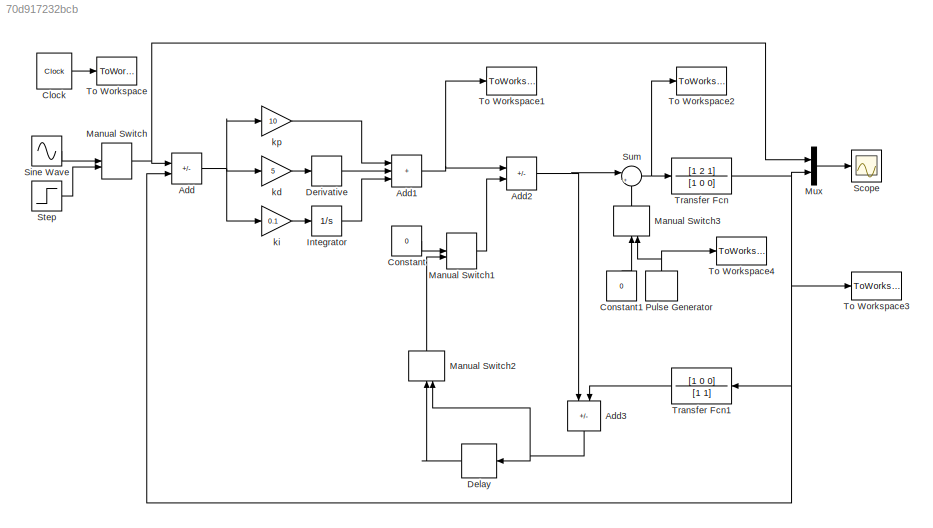
MODEL slx_70d917232bcb
KIND model
CONFIG AbsTol = auto
CONFIG EnableMultiTasking = off
CONFIG FixedStep = auto
CONFIG MaxStep = auto
CONFIG MinStep = auto
CONFIG RelTol = 1e-3
CONFIG SampleTimeConstraint = Unconstrained
CONFIG SolverName = ode4
CONFIG StartTime = 0.0
CONFIG StopTime = 10.0
BLOCK [Sum] Add
  IconShape = rectangular
  Inputs = +-
BLOCK [Sum] Add1
  IconShape = rectangular
  Inputs = +++
BLOCK [Sum] Add2
  IconShape = rectangular
  Inputs = +-
BLOCK [Sum] Add3
  IconShape = rectangular
  Inputs = -+
  NameLocation = left
BLOCK [Clock] Clock
  Decimation = 1
BLOCK [Constant] Constant
  Value = 0
BLOCK [Constant] Constant1
  NameLocation = right
  Value = 0
BLOCK [Delay] Delay
  DelayLength = 1
  InitialCondition = 0
  InputPortMap = u0
BLOCK [Derivative] Derivative
BLOCK [Integrator] Integrator
BLOCK [ManualSwitch] Manual Switch
BLOCK [ManualSwitch] Manual Switch1
BLOCK [ManualSwitch] Manual Switch2
  CurrentSetting = 0
  NameLocation = left
BLOCK [ManualSwitch] Manual Switch3
  CurrentSetting = 0
  NameLocation = left
BLOCK [Mux] Mux
  DisplayOption = bar
  Inputs = 2
BLOCK [DiscretePulseGenerator] Pulse Generator
  Amplitude = 3
  NameLocation = right
  Period = 1
  PhaseDelay = 1
  PulseType = Time based
  PulseWidth = 20
BLOCK [Scope] Scope
  Floating = off
  NumInputPorts = 1
  ScopeSpecificationString = Simulink.scopes.TimeScopeBlockCfg('CurrentConfiguration', extmgr.ConfigurationSet(extmgr.Configuration('Core','General UI',true,'FigureColor',[1 1 1]),extmgr.Configuration('Core','Source UI',true),extmgr.Configuration('Sources','WiredSimulink',true),extmgr.Configuration('Visuals','Time Domain',true,'SerializedDisplays',{struct('MinYLimReal','-1.2552','MaxYLimReal','1.33519','YLabelReal','','MinYLi...<+1662ch>
BLOCK [Sin] Sine Wave
  SampleTime = 0
BLOCK [Step] Step
  SampleTime = 0
  Time = 0
  VectorParams1D = off
  ZeroCross = off
BLOCK [Sum] Sum
  Inputs = |++
BLOCK [ToWorkspace] To Workspace
  MaxDataPoints = inf
  SampleTime = -1
  Save2DSignal = 2-D array (concatenate along first dimension)
  VariableName = t
BLOCK [ToWorkspace] To Workspace1
  MaxDataPoints = inf
  SampleTime = -1
  Save2DSignal = 2-D array (concatenate along first dimension)
  VariableName = ub
BLOCK [ToWorkspace] To Workspace2
  MaxDataPoints = inf
  SampleTime = -1
  Save2DSignal = 2-D array (concatenate along first dimension)
  VariableName = ut
BLOCK [ToWorkspace] To Workspace3
  MaxDataPoints = inf
  SampleTime = -1
  Save2DSignal = 2-D array (concatenate along first dimension)
  VariableName = y
BLOCK [ToWorkspace] To Workspace4
  MaxDataPoints = inf
  SampleTime = -1
  Save2DSignal = 2-D array (concatenate along first dimension)
  VariableName = d
BLOCK [TransferFcn] Transfer Fcn
  Denominator = [1 0 0]
  Numerator = [1 2 1]
BLOCK [TransferFcn] Transfer Fcn1
  Numerator = [1 0 0]
BLOCK [Gain] kd
  Gain = 5
BLOCK [Gain] ki
  Gain = 0.1
BLOCK [Gain] kp
  Gain = 10
NET Add1:1 -> Add2:1, To Workspace1:1
NET Add2:1 -> Add3:1, Sum:1
NET Add3:1 -> Delay:1, Manual Switch2:2
NET Add:1 -> kd:1, ki:1, kp:1
LINE Clock:1 -> To Workspace:1
LINE Constant1:1 -> Manual Switch3:1
LINE Constant:1 -> Manual Switch1:1
LINE Delay:1 -> Manual Switch2:1
LINE Derivative:1 -> Add1:2
LINE Integrator:1 -> Add1:3
LINE Manual Switch1:1 -> Add2:2
LINE Manual Switch2:1 -> Manual Switch1:2
LINE Manual Switch3:1 -> Sum:2
NET Manual Switch:1 -> Add:1, Mux:1
LINE Mux:1 -> Scope:1
NET Pulse Generator:1 -> Manual Switch3:2, To Workspace4:1
LINE Sine Wave:1 -> Manual Switch:1
LINE Step:1 -> Manual Switch:2
NET Sum:1 -> To Workspace2:1, Transfer Fcn:1
LINE Transfer Fcn1:1 -> Add3:2
NET Transfer Fcn:1 -> Add:2, Mux:2, To Workspace3:1, Transfer Fcn1:1
LINE kd:1 -> Derivative:1
LINE ki:1 -> Integrator:1
LINE kp:1 -> Add1:1
note: NET lines group one-source signal fan-out (src -> all destinations, sorted); 1:1 wires keep LINE
